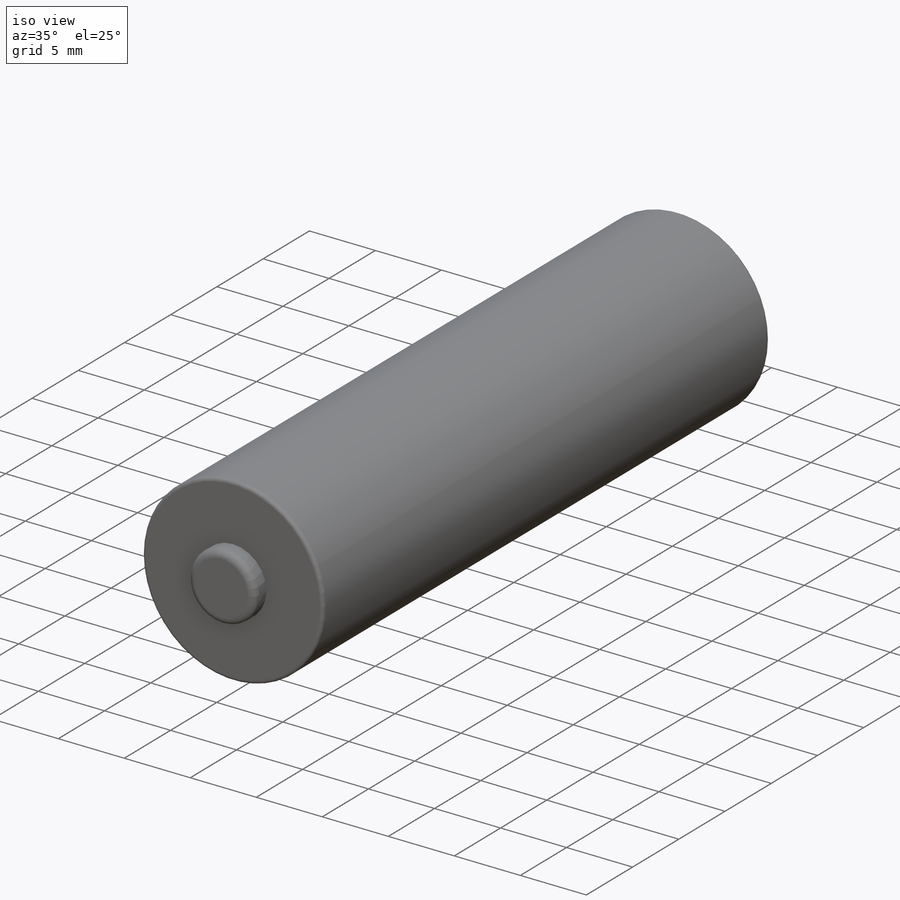
[diagram: iso view]
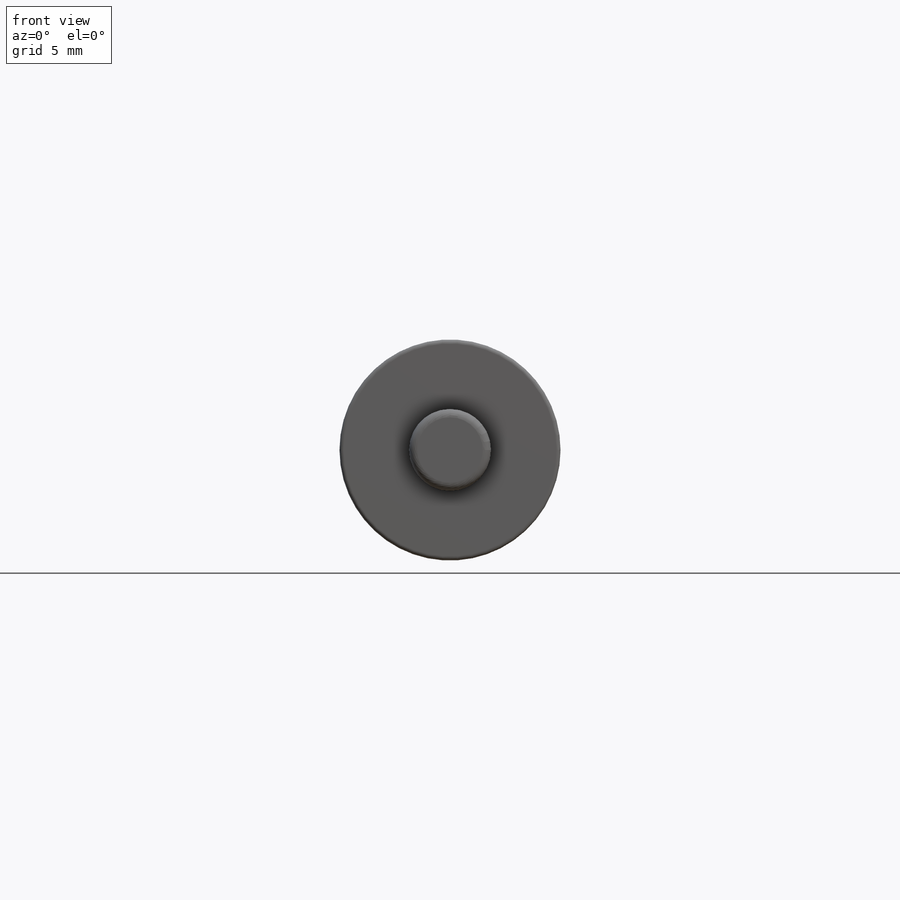
[diagram: front view]
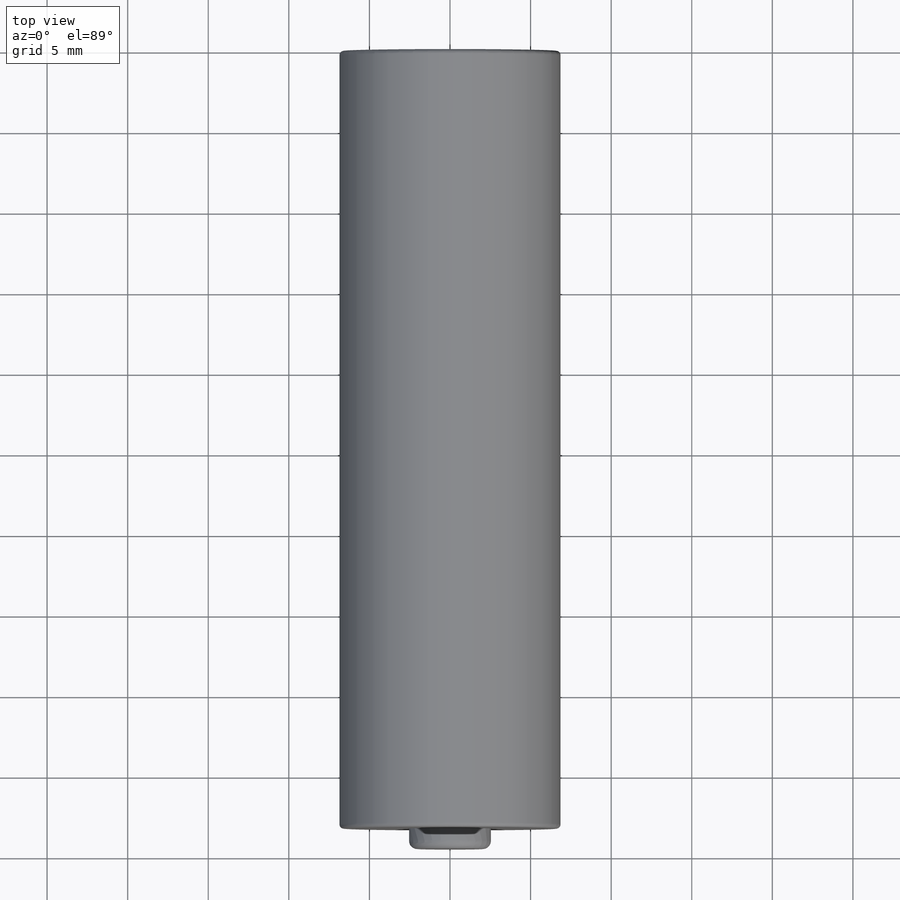
[diagram: top view]
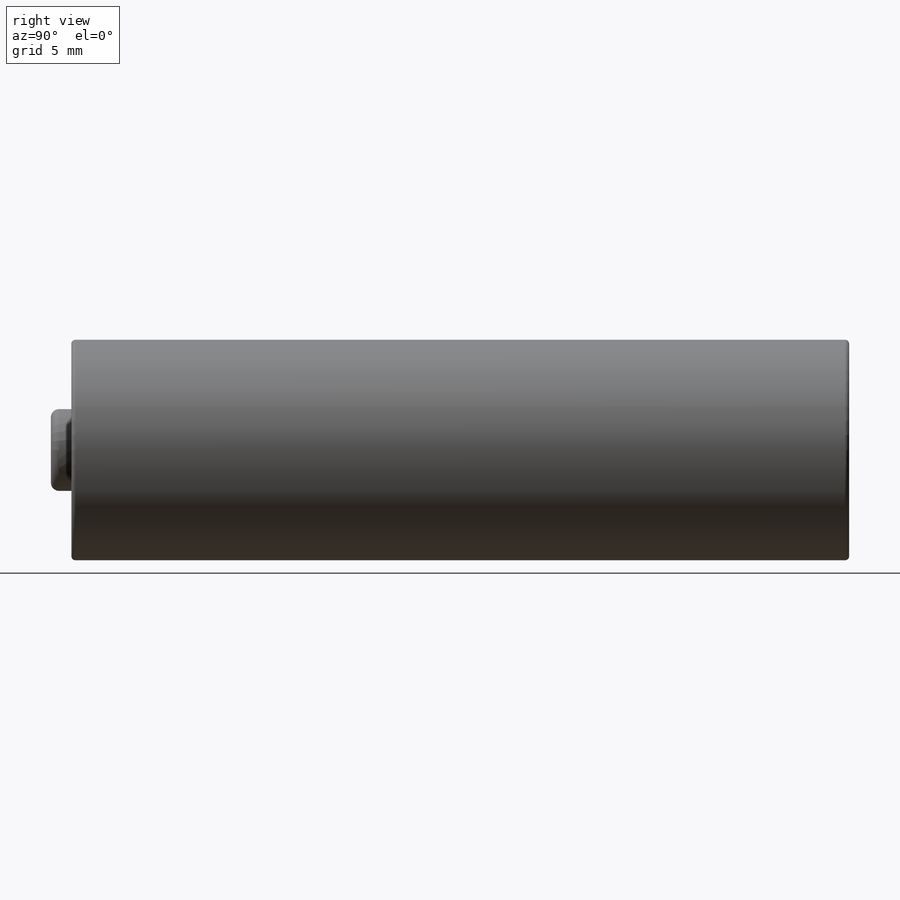
[diagram: right view]
SOLIDWORKS PART (.sldprt)
format: sldprt  version: not decoded by parser v0  size: 225,792 bytes
history: native  units: mm
features: sketch x2, extrude x2, fillet x2, material x1, dome x1 (+12 scaffold rows collapsed)
feature tree (20):
  scaffold x12  (default folders/planes/origin — collapsed)
  material  "Material <not specified>"
  sketch  "Sketch1"  dims[D1=13.716mm]
  extrude  "Boss-Extrude1"  Depth=48.26mm
  fillet  "Fillet1"  Radius=0.254mm
  sketch  "Sketch2"  dims[D1=5.08mm]
  extrude  "Boss-Extrude2"  Depth=1.27mm
  fillet  "Fillet2"  Radius=0.508mm
  dome  "Dome1"
decode coverage: 6 of 7 modeling features carry decoded parameters
note: suppression state not decoded; provenance and decode notes live in map.json
